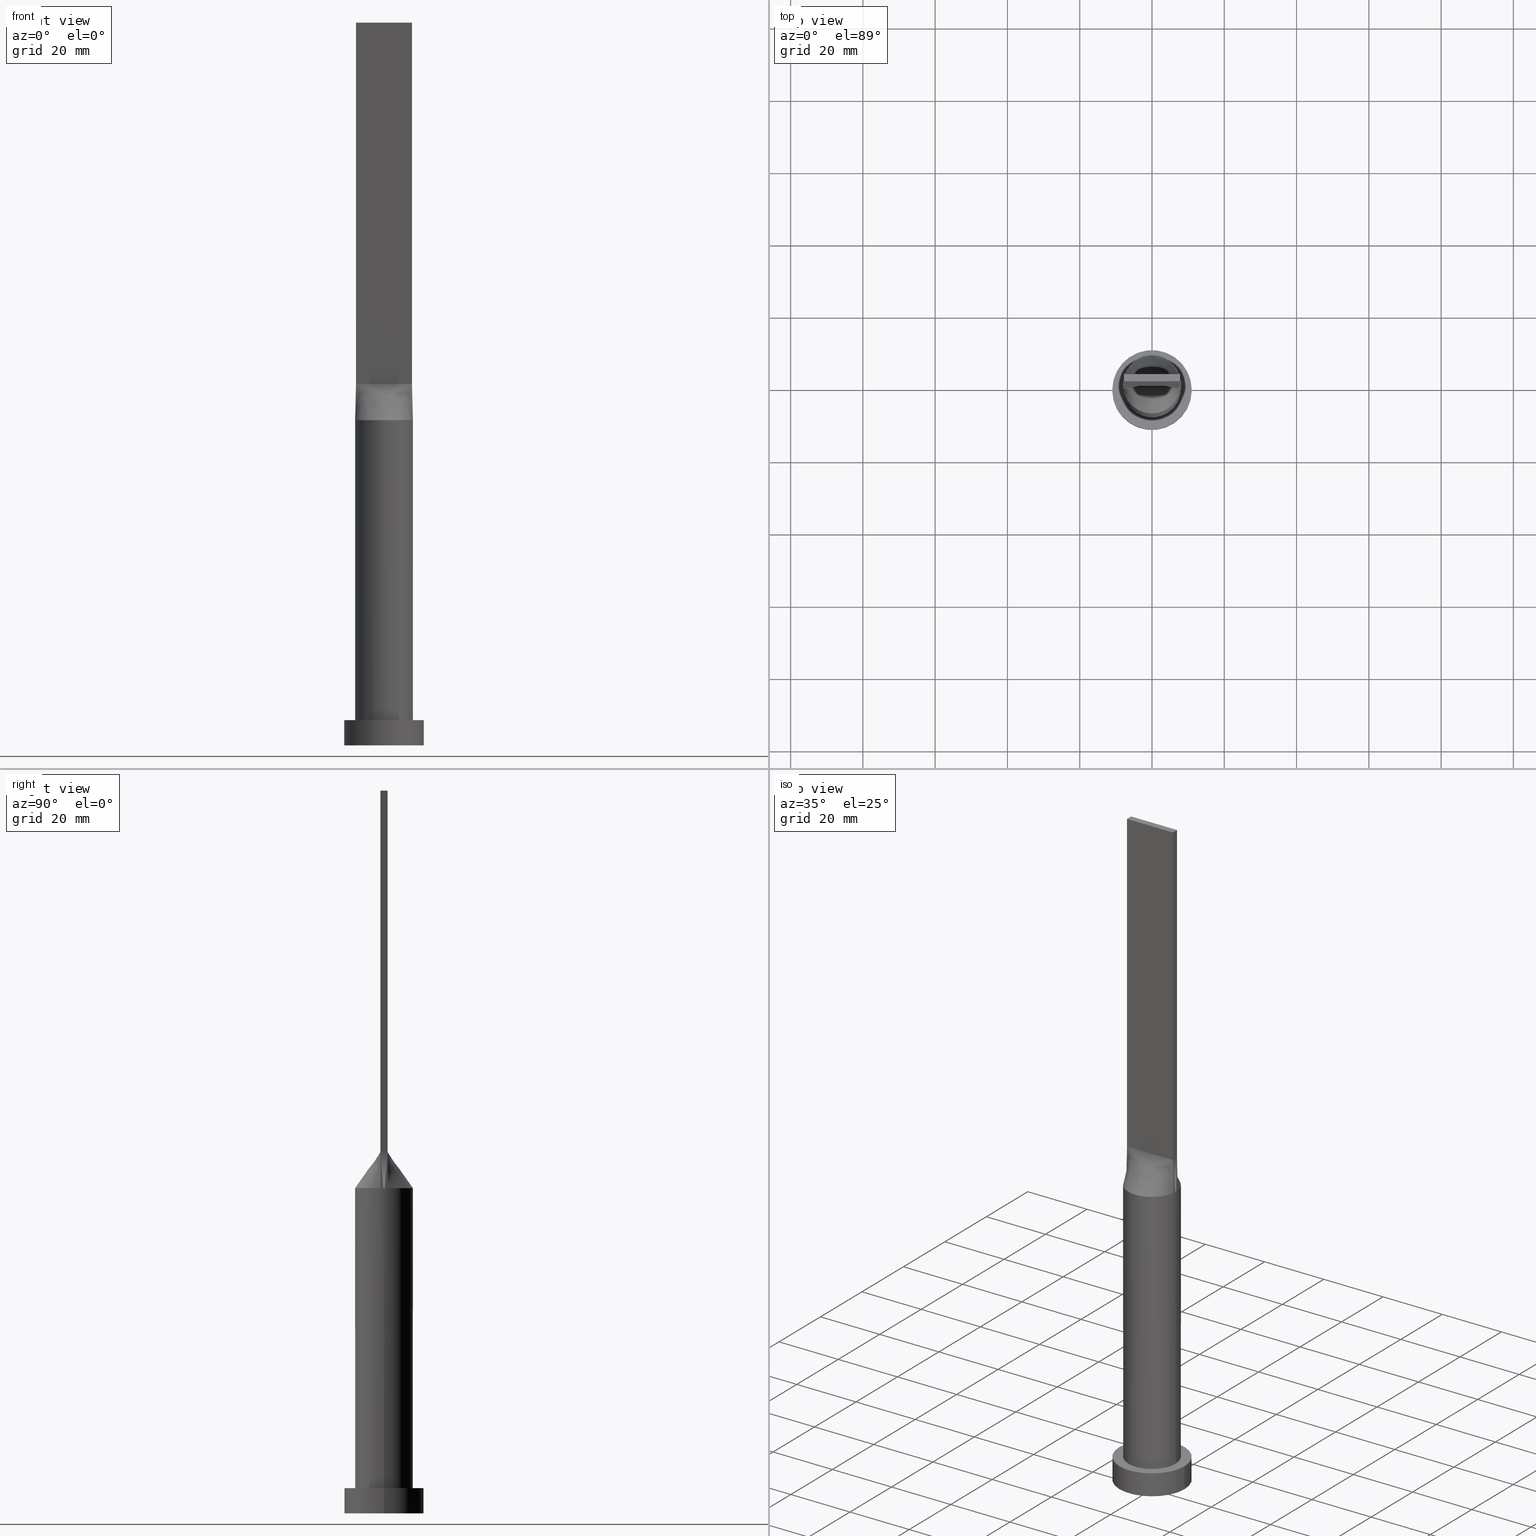
[diagram: canonical four-view strip — front | top / right | iso, engineering-drawing reading convention]
A machine part, canonical four-view strip (front | top / right | iso — engineering-drawing reading convention). The complete STEP part file that produces these views, byte-faithful:
ISO-10303-21;
HEADER;
FILE_DESCRIPTION (( 'STEP AP203' ),
    '1' );
FILE_NAME ('3064.STEP',
    '2023-02-13T08:32:49',
    ( '' ),
    ( '' ),
    'SwSTEP 2.0',
    'SolidWorks 2019',
    '' );
FILE_SCHEMA (( 'CONFIG_CONTROL_DESIGN' ));
ENDSEC;

DATA;
#1 = VERTEX_POINT ( 'NONE', #596 ) ;
#2 = FACE_OUTER_BOUND ( 'NONE', #7, .T. ) ;
#3 = CARTESIAN_POINT ( 'NONE',  ( -11.00000000000000000, 0.000000000000000000, 7.000000000000000000 ) ) ;
#4 = PRODUCT_DEFINITION_SHAPE ( 'NONE', 'NONE',  #186 ) ;
#5 = CYLINDRICAL_SURFACE ( 'NONE', #425, 11.00000000000000000 ) ;
#6 = VECTOR ( 'NONE', #561, 1000.000000000000000 ) ;
#7 = EDGE_LOOP ( 'NONE', ( #163, #318, #201, #116 ) ) ;
#8 = CARTESIAN_POINT ( 'NONE',  ( 7.104166666666666963, 1.000000000000000000, 100.0000000000000000 ) ) ;
#9 = LINE ( 'NONE', #112, #133 ) ;
#10 = ORIENTED_EDGE ( 'NONE', *, *, #243, .T. ) ;
#11 = CARTESIAN_POINT ( 'NONE',  ( -7.999729586091648414, 0.3426598302205489666, 90.00000000000001421 ) ) ;
#12 = LINE ( 'NONE', #212, #327 ) ;
#13 = ORIENTED_EDGE ( 'NONE', *, *, #241, .F. ) ;
#14 = EDGE_LOOP ( 'NONE', ( #505, #175 ) ) ;
#15 = LINE ( 'NONE', #32, #271 ) ;
#16 = EDGE_CURVE ( 'NONE', #24, #1, #154, .T. ) ;
#17 = CARTESIAN_POINT ( 'NONE',  ( -6.226863775955933988, -5.046530946333157353, 90.00000000000001421 ) ) ;
#18 = PERSON_AND_ORGANIZATION ( #294, #67 ) ;
#19 = DIRECTION ( 'NONE',  ( 1.000000000000000000, -6.994852725712931474E-17, 0.000000000000000000 ) ) ;
#20 = DIRECTION ( 'NONE',  ( -0.000000000000000000, -0.000000000000000000, -1.000000000000000000 ) ) ;
#21 = EDGE_CURVE ( 'NONE', #127, #364, #267, .T. ) ;
#22 = FACE_OUTER_BOUND ( 'NONE', #573, .T. ) ;
#23 = CARTESIAN_POINT ( 'NONE',  ( -7.750000000000000000, 1.000000000000000000, 200.0000000000000000 ) ) ;
#24 = VERTEX_POINT ( 'NONE', #23 ) ;
#25 = CARTESIAN_POINT ( 'NONE',  ( -1.291666666666666741, -0.9999999999999991118, 100.0000000000000284 ) ) ;
#26 = ORIENTED_EDGE ( 'NONE', *, *, #107, .T. ) ;
#27 = DIRECTION ( 'NONE',  ( -0.000000000000000000, -0.000000000000000000, -1.000000000000000000 ) ) ;
#28 = EDGE_CURVE ( 'NONE', #583, #354, #617, .T. ) ;
#29 = VECTOR ( 'NONE', #27, 1000.000000000000000 ) ;
#30 = B_SPLINE_CURVE_WITH_KNOTS ( 'NONE', 3,
 ( #274, #121, #570, #558, #236, #229, #616, #111, #173, #608, #334, #280, #619, #428, #322, #382, #168, #371, #244, #287, #345, #586, #142, #180, #79, #579, #347, #85, #296, #623 ),
 .UNSPECIFIED., .F., .F.,
 ( 4, 2, 2, 2, 2, 2, 2, 2, 2, 2, 2, 2, 2, 2, 4 ),
 ( 0.000000000000000000, 0.1250000000000000000, 0.1875000000000000000, 0.2500000000000000000, 0.3125000000000000000, 0.3750000000000000000, 0.4375000000000000000, 0.5000000000000000000, 0.5625000000000000000, 0.6250000000000000000, 0.6875000000000000000, 0.7500000000000000000, 0.8125000000000000000, 0.8750000000000000000, 1.000000000000000000 ),
 .UNSPECIFIED. ) ;
#31 = DIRECTION ( 'NONE',  ( 1.000000000000000000, 0.000000000000000000, 0.000000000000000000 ) ) ;
#32 = CARTESIAN_POINT ( 'NONE',  ( 7.750000000000000000, 1.000000000000000000, 200.0000000000000000 ) ) ;
#33 = CARTESIAN_POINT ( 'NONE',  ( -2.847317194822260422, 7.497028652483947120, 90.00000000000004263 ) ) ;
#34 = LOCAL_TIME ( 9, 32, 49.00000000000000000, #209 ) ;
#35 = CARTESIAN_POINT ( 'NONE',  ( -4.520833333333333925, 1.000000000000000000, 100.0000000000000284 ) ) ;
#36 = EDGE_CURVE ( 'NONE', #248, #546, #170, .T. ) ;
#37 = DIRECTION ( 'NONE',  ( -1.000000000000000000, 0.000000000000000000, 0.000000000000000000 ) ) ;
#38 = CARTESIAN_POINT ( 'NONE',  ( 1.614583333333333481, 1.000000000000000000, 100.0000000000000000 ) ) ;
#39 = AXIS2_PLACEMENT_3D ( 'NONE', #550, #312, #97 ) ;
#40 = APPROVAL ( #522, 'NEUR�EN�' ) ;
#41 = CARTESIAN_POINT ( 'NONE',  ( -4.333237558274722900, 6.745559271922134670, 90.00000000000002842 ) ) ;
#42 = B_SPLINE_SURFACE_WITH_KNOTS ( 'NONE', 3, 1, ( 
 ( #504, #453 ),
 ( #210, #554 ),
 ( #11, #545 ),
 ( #215, #93 ),
 ( #158, #59 ),
 ( #604, #253 ) ),
 .UNSPECIFIED., .F., .F., .F.,
 ( 4, 2, 4 ),
 ( 2, 2 ),
 ( 0.000000000000000000, 0.5000000000000000000, 1.000000000000000000 ),
 ( 0.000000000000000000, 1.000000000000000000 ),
 .UNSPECIFIED. ) ;
#43 = ORIENTED_EDGE ( 'NONE', *, *, #21, .T. ) ;
#44 = DIRECTION ( 'NONE',  ( -1.000000000000000000, -0.000000000000000000, -0.000000000000000000 ) ) ;
#45 = LINE ( 'NONE', #593, #534 ) ;
#46 =( NAMED_UNIT ( * ) SI_UNIT ( $, .STERADIAN. ) SOLID_ANGLE_UNIT ( ) );
#47 = EDGE_LOOP ( 'NONE', ( #494, #594, #206, #43 ) ) ;
#48 = DIRECTION ( 'NONE',  ( 0.000000000000000000, 0.000000000000000000, 1.000000000000000000 ) ) ;
#49 = PLANE ( 'NONE',  #566 ) ;
#50 = CARTESIAN_POINT ( 'NONE',  ( -7.750000000000000000, 1.000000000000000000, 100.0000000000000000 ) ) ;
#51 = CIRCLE ( 'NONE', #340, 8.000000000000000000 ) ;
#52 = EDGE_LOOP ( 'NONE', ( #333, #234, #279, #303 ) ) ;
#53 = LOCAL_TIME ( 9, 32, 49.00000000000000000, #621 ) ;
#54 = CARTESIAN_POINT ( 'NONE',  ( 5.166666666666666963, 1.000000000000000000, 100.0000000000000000 ) ) ;
#55 = CARTESIAN_POINT ( 'NONE',  ( 0.000000000000000000, 0.000000000000000000, 7.000000000000000000 ) ) ;
#56 = PERSON_AND_ORGANIZATION_ROLE ( 'classification_officer' ) ;
#57 = CARTESIAN_POINT ( 'NONE',  ( 7.192469010134844964, -3.526369025759696907, 90.00000000000001421 ) ) ;
#58 = APPLICATION_PROTOCOL_DEFINITION ( 'international standard', 'config_control_design', 1994, #624 ) ;
#59 = CARTESIAN_POINT ( 'NONE',  ( -7.750000000000000000, -0.6666666666666648533, 100.0000000000000000 ) ) ;
#60 = PERSON_AND_ORGANIZATION_ROLE ( 'design_supplier' ) ;
#61 = CARTESIAN_POINT ( 'NONE',  ( 0.000000000000000000, 0.000000000000000000, 90.00000000000001421 ) ) ;
#62 = PERSON_AND_ORGANIZATION ( #294, #67 ) ;
#63 = EDGE_CURVE ( 'NONE', #360, #295, #313, .T. ) ;
#64 = CARTESIAN_POINT ( 'NONE',  ( -7.934264564332944580, 1.023776086464161406, 90.00000000000001421 ) ) ;
#65 = CARTESIAN_POINT ( 'NONE',  ( 1.291666666666665630, -0.9999999999999991118, 100.0000000000000142 ) ) ;
#66 = ORIENTED_EDGE ( 'NONE', *, *, #584, .F. ) ;
#67 = ORGANIZATION ( 'NEUR�EN�', 'NEUR�EN�', '' ) ;
#68 = CC_DESIGN_PERSON_AND_ORGANIZATION_ASSIGNMENT ( #268, #56, ( #74 ) ) ;
#69 = PLANE ( 'NONE',  #199 ) ;
#70 = EDGE_LOOP ( 'NONE', ( #615, #222, #76, #72 ) ) ;
#71 = VERTEX_POINT ( 'NONE', #380 ) ;
#72 = ORIENTED_EDGE ( 'NONE', *, *, #297, .T. ) ;
#73 = VECTOR ( 'NONE', #87, 1000.000000000000114 ) ;
#74 = SECURITY_CLASSIFICATION ( '', '', #172 ) ;
#75 = CARTESIAN_POINT ( 'NONE',  ( 4.333237558274721124, -6.745559271922137334, 90.00000000000004263 ) ) ;
#76 = ORIENTED_EDGE ( 'NONE', *, *, #495, .F. ) ;
#77 = PLANE ( 'NONE',  #553 ) ;
#78 = CARTESIAN_POINT ( 'NONE',  ( 3.552083333333333481, -0.9999999999999993339, 100.0000000000000142 ) ) ;
#79 = CARTESIAN_POINT ( 'NONE',  ( -6.511821874825407974, 4.668925682402791821, 90.00000000000001421 ) ) ;
#80 = ADVANCED_FACE ( 'NONE', ( #119 ), #359, .T. ) ;
#81 = DIRECTION ( 'NONE',  ( 0.000000000000000000, 0.000000000000000000, 1.000000000000000000 ) ) ;
#82 = CIRCLE ( 'NONE', #451, 8.000000000000000000 ) ;
#83 = CARTESIAN_POINT ( 'NONE',  ( 6.511821874825409751, 4.668925682402791821, 90.00000000000001421 ) ) ;
#84 = CARTESIAN_POINT ( 'NONE',  ( -3.862537548001455878, 7.028047916340264045, 90.00000000000004263 ) ) ;
#85 = CARTESIAN_POINT ( 'NONE',  ( -7.675166908885236339, 2.399868494543667907, 90.00000000000002842 ) ) ;
#86 = CARTESIAN_POINT ( 'NONE',  ( -7.750000000000000000, -0.9999999999999986677, 100.0000000000000000 ) ) ;
#87 = DIRECTION ( 'NONE',  ( -0.01841911599500831165, 0.002376660128388246706, 0.9998275289531671772 ) ) ;
#88 = CARTESIAN_POINT ( 'NONE',  ( -5.489583333333335702, 1.000000000000000000, 100.0000000000000284 ) ) ;
#89 = DIRECTION ( 'NONE',  ( 1.000000000000000000, 0.000000000000000000, 0.000000000000000000 ) ) ;
#90 = ORIENTED_EDGE ( 'NONE', *, *, #63, .T. ) ;
#91 = CYLINDRICAL_SURFACE ( 'NONE', #329, 11.00000000000000000 ) ;
#92 = DIRECTION ( 'NONE',  ( 0.000000000000000000, 0.000000000000000000, 1.000000000000000000 ) ) ;
#93 = CARTESIAN_POINT ( 'NONE',  ( -7.750000000000000000, -0.3333333333333312609, 100.0000000000000000 ) ) ;
#94 = ADVANCED_FACE ( 'NONE', ( #375 ), #625, .F. ) ;
#95 = EDGE_LOOP ( 'NONE', ( #228, #443, #379, #151, #475, #90 ) ) ;
#96 = ADVANCED_FACE ( 'NONE', ( #605 ), #270, .F. ) ;
#97 = DIRECTION ( 'NONE',  ( 1.000000000000000000, 0.000000000000000000, 0.000000000000000000 ) ) ;
#98 =( NAMED_UNIT ( * ) PLANE_ANGLE_UNIT ( ) SI_UNIT ( $, .RADIAN. ) );
#99 = EDGE_LOOP ( 'NONE', ( #411, #124, #423, #254 ) ) ;
#100 = DIRECTION ( 'NONE',  ( 1.000000000000000000, 0.000000000000000000, 0.000000000000000000 ) ) ;
#101 = DIRECTION ( 'NONE',  ( 1.000000000000000000, 0.000000000000000000, -0.000000000000000000 ) ) ;
#102 = CIRCLE ( 'NONE', #626, 8.000000000000000000 ) ;
#103 = CARTESIAN_POINT ( 'NONE',  ( 7.750000000000000000, -0.3333333333333324822, 100.0000000000000000 ) ) ;
#104 = CALENDAR_DATE ( 2023, 13, 2 ) ;
#105 = LINE ( 'NONE', #399, #233 ) ;
#106 = CARTESIAN_POINT ( 'NONE',  ( 4.197916666666666963, -0.9999999999999993339, 100.0000000000000142 ) ) ;
#107 = EDGE_CURVE ( 'NONE', #471, #220, #51, .T. ) ;
#108 = LINE ( 'NONE', #284, #525 ) ;
#109 = ORIENTED_EDGE ( 'NONE', *, *, #238, .F. ) ;
#110 = COORDINATED_UNIVERSAL_TIME_OFFSET ( 1, 0, .AHEAD. ) ;
#111 = CARTESIAN_POINT ( 'NONE',  ( 5.562660223239392465, 5.770452176164421410, 90.00000000000001421 ) ) ;
#112 = CARTESIAN_POINT ( 'NONE',  ( 7.750000000000000000, 1.000000000000000000, 200.0000000000000000 ) ) ;
#113 = DATE_TIME_ROLE ( 'creation_date' ) ;
#114 = CARTESIAN_POINT ( 'NONE',  ( 5.166666666666666963, -0.9999999999999995559, 100.0000000000000000 ) ) ;
#115 = CARTESIAN_POINT ( 'NONE',  ( -2.302877821226939403, -7.683241396761614439, 90.00000000000007105 ) ) ;
#116 = ORIENTED_EDGE ( 'NONE', *, *, #36, .F. ) ;
#117 = CARTESIAN_POINT ( 'NONE',  ( 7.750000000000000000, -0.9999999999999997780, 100.0000000000000000 ) ) ;
#118 = DIRECTION ( 'NONE',  ( 0.000000000000000000, 0.000000000000000000, 1.000000000000000000 ) ) ;
#119 = FACE_OUTER_BOUND ( 'NONE', #607, .T. ) ;
#120 = VECTOR ( 'NONE', #176, 1000.000000000000000 ) ;
#121 = CARTESIAN_POINT ( 'NONE',  ( 7.849610172922079521, 1.679519592204998801, 90.00000000000001421 ) ) ;
#122 = CARTESIAN_POINT ( 'NONE',  ( 6.994548530637813677, -3.908833842696238570, 90.00000000000000000 ) ) ;
#123 = EDGE_CURVE ( 'NONE', #314, #295, #363, .T. ) ;
#124 = ORIENTED_EDGE ( 'NONE', *, *, #289, .F. ) ;
#125 = CARTESIAN_POINT ( 'NONE',  ( -5.489583333333332149, -0.9999999999999986677, 100.0000000000000000 ) ) ;
#126 = PERSON_AND_ORGANIZATION ( #294, #67 ) ;
#127 = VERTEX_POINT ( 'NONE', #165 ) ;
#128 = CARTESIAN_POINT ( 'NONE',  ( 1.614583333333331927, -0.9999999999999991118, 100.0000000000000284 ) ) ;
#129 = EDGE_LOOP ( 'NONE', ( #10, #213, #548, #427, #109 ) ) ;
#130 = ADVANCED_FACE ( 'NONE', ( #266 ), #556, .T. ) ;
#131 = VECTOR ( 'NONE', #468, 1000.000000000000000 ) ;
#132 = CARTESIAN_POINT ( 'NONE',  ( 7.750000000000000000, 1.000000000000000000, 200.0000000000000000 ) ) ;
#133 = VECTOR ( 'NONE', #20, 1000.000000000000000 ) ;
#134 = APPROVAL_PERSON_ORGANIZATION ( #330, #441, #230 ) ;
#135 = CARTESIAN_POINT ( 'NONE',  ( -7.934222933072200945, 1.023770701041572195, 90.00000000000001421 ) ) ;
#136 = LINE ( 'NONE', #533, #410 ) ;
#137 = DIRECTION ( 'NONE',  ( -1.000000000000000000, 6.994852725712931474E-17, 0.000000000000000000 ) ) ;
#138 = DIRECTION ( 'NONE',  ( 1.000000000000000000, 9.769962616701377556E-15, 0.000000000000000000 ) ) ;
#139 = CARTESIAN_POINT ( 'NONE',  ( -2.260416666666666519, 1.000000000000000000, 100.0000000000000142 ) ) ;
#140 = ADVANCED_FACE ( 'NONE', ( #22 ), #69, .F. ) ;
#141 = CIRCLE ( 'NONE', #577, 11.00000000000000000 ) ;
#142 = CARTESIAN_POINT ( 'NONE',  ( -5.562660223239390689, 5.770452176164420521, 90.00000000000001421 ) ) ;
#143 = CARTESIAN_POINT ( 'NONE',  ( -5.183259239191613688, 6.116644610143057825, 90.00000000000002842 ) ) ;
#144 = CARTESIAN_POINT ( 'NONE',  ( 0.000000000000000000, 0.000000000000000000, 200.0000000000000000 ) ) ;
#145 = CARTESIAN_POINT ( 'NONE',  ( -1.291666666666666741, 1.000000000000000000, 100.0000000000000000 ) ) ;
#146 = ORIENTED_EDGE ( 'NONE', *, *, #620, .F. ) ;
#147 = CARTESIAN_POINT ( 'NONE',  ( -8.000000000000000000, 0.000000000000000000, 90.00000000000001421 ) ) ;
#148 = FACE_OUTER_BOUND ( 'NONE', #14, .T. ) ;
#149 = FACE_OUTER_BOUND ( 'NONE', #95, .T. ) ;
#150 = VECTOR ( 'NONE', #478, 1000.000000000000114 ) ;
#151 = ORIENTED_EDGE ( 'NONE', *, *, #107, .F. ) ;
#152 = CARTESIAN_POINT ( 'NONE',  ( 7.750000000000000000, 0.3333333333333342030, 100.0000000000000000 ) ) ;
#153 = DIRECTION ( 'NONE',  ( -1.000000000000000000, 0.000000000000000000, 0.000000000000000000 ) ) ;
#154 = LINE ( 'NONE', #517, #398 ) ;
#155 = CARTESIAN_POINT ( 'NONE',  ( 7.849610172922079521, 1.679519592204998801, 90.00000000000001421 ) ) ;
#156 = VERTEX_POINT ( 'NONE', #455 ) ;
#157 = CARTESIAN_POINT ( 'NONE',  ( 7.675166908885234562, 2.399868494543665243, 90.00000000000000000 ) ) ;
#158 = CARTESIAN_POINT ( 'NONE',  ( -7.977894035085166813, -0.6853196604410948245, 90.00000000000001421 ) ) ;
#159 = PERSON_AND_ORGANIZATION ( #294, #67 ) ;
#160 = EDGE_CURVE ( 'NONE', #364, #24, #15, .T. ) ;
#161 = CARTESIAN_POINT ( 'NONE',  ( 7.675166908885234562, -2.399868494543666131, 90.00000000000004263 ) ) ;
#162 = AXIS2_PLACEMENT_3D ( 'NONE', #459, #430, #31 ) ;
#163 = ORIENTED_EDGE ( 'NONE', *, *, #227, .F. ) ;
#164 = AXIS2_PLACEMENT_3D ( 'NONE', #473, #328, #89 ) ;
#165 = CARTESIAN_POINT ( 'NONE',  ( 7.750000000000000000, -0.9999999999999997780, 200.0000000000000000 ) ) ;
#166 = CARTESIAN_POINT ( 'NONE',  ( 1.172177046651855292, -7.934824862069280726, 90.00000000000007105 ) ) ;
#167 = ORIENTED_EDGE ( 'NONE', *, *, #123, .T. ) ;
#168 = CARTESIAN_POINT ( 'NONE',  ( -1.172177046651856402, 7.934824862069282503, 90.00000000000004263 ) ) ;
#169 = CARTESIAN_POINT ( 'NONE',  ( 7.104166666666667851, -0.9999999999999995559, 100.0000000000000000 ) ) ;
#170 = LINE ( 'NONE', #332, #131 ) ;
#171 = DATE_AND_TIME ( #612, #500 ) ;
#172 = SECURITY_CLASSIFICATION_LEVEL ( 'unclassified' ) ;
#173 = CARTESIAN_POINT ( 'NONE',  ( 5.183259239191615464, 6.116644610143058713, 90.00000000000001421 ) ) ;
#174 = DIRECTION ( 'NONE',  ( 0.000000000000000000, 1.000000000000000000, 0.000000000000000000 ) ) ;
#175 = ORIENTED_EDGE ( 'NONE', *, *, #227, .T. ) ;
#176 = DIRECTION ( 'NONE',  ( -0.000000000000000000, -0.000000000000000000, -1.000000000000000000 ) ) ;
#177 = COORDINATED_UNIVERSAL_TIME_OFFSET ( 1, 0, .AHEAD. ) ;
#178 = CARTESIAN_POINT ( 'NONE',  ( -7.104166666666666963, -0.9999999999999986677, 100.0000000000000000 ) ) ;
#179 = EDGE_LOOP ( 'NONE', ( #341, #167, #285, #146, #563, #449 ) ) ;
#180 = CARTESIAN_POINT ( 'NONE',  ( -6.226863775955933100, 5.046530946333157353, 90.00000000000002842 ) ) ;
#181 = DIRECTION ( 'NONE',  ( 0.000000000000000000, 0.000000000000000000, 1.000000000000000000 ) ) ;
#182 = CARTESIAN_POINT ( 'NONE',  ( -7.750000000000000000, -0.9999999999999986677, 200.0000000000000000 ) ) ;
#183 = LINE ( 'NONE', #388, #73 ) ;
#184 = EDGE_CURVE ( 'NONE', #24, #503, #12, .T. ) ;
#185 = CARTESIAN_POINT ( 'NONE',  ( 2.260416666666666519, 1.000000000000000000, 100.0000000000000000 ) ) ;
#186 = PRODUCT_DEFINITION ( 'NEZN�M�', '', #218, #610 ) ;
#187 = VECTOR ( 'NONE', #265, 1000.000000000000114 ) ;
#188 = CARTESIAN_POINT ( 'NONE',  ( 1.291666666666666741, 1.000000000000000000, 100.0000000000000000 ) ) ;
#189 = MECHANICAL_CONTEXT ( 'NONE', #624, 'mechanical' ) ;
#190 = VERTEX_POINT ( 'NONE', #420 ) ;
#191 = CARTESIAN_POINT ( 'NONE',  ( 6.226863775955932212, 5.046530946333158241, 90.00000000000002842 ) ) ;
#192 = ORIENTED_EDGE ( 'NONE', *, *, #299, .F. ) ;
#193 = CARTESIAN_POINT ( 'NONE',  ( -7.750000000000000000, 1.000000000000000000, 100.0000000000000000 ) ) ;
#194 = CARTESIAN_POINT ( 'NONE',  ( -7.842111466536100473, 1.011885350520786098, 95.00000000000000000 ) ) ;
#195 = CARTESIAN_POINT ( 'NONE',  ( -2.583333333333333481, 1.000000000000000000, 100.0000000000000284 ) ) ;
#196 = EDGE_CURVE ( 'NONE', #314, #156, #102, .T. ) ;
#197 = ORIENTED_EDGE ( 'NONE', *, *, #350, .F. ) ;
#198 = DIRECTION ( 'NONE',  ( 1.000000000000000000, 0.000000000000000000, -0.000000000000000000 ) ) ;
#199 = AXIS2_PLACEMENT_3D ( 'NONE', #568, #502, #276 ) ;
#200 = CC_DESIGN_APPROVAL ( #441, ( #186 ) ) ;
#201 = ORIENTED_EDGE ( 'NONE', *, *, #350, .T. ) ;
#202 = CARTESIAN_POINT ( 'NONE',  ( 7.977894035085165036, -0.6853196604410977111, 90.00000000000001421 ) ) ;
#203 = CARTESIAN_POINT ( 'NONE',  ( -7.750000000000000000, -0.9999999999999986677, 100.0000000000000000 ) ) ;
#204 = APPROVAL_DATE_TIME ( #257, #613 ) ;
#205 = DIRECTION ( 'NONE',  ( 1.000000000000000000, 0.000000000000000000, 0.000000000000000000 ) ) ;
#206 = ORIENTED_EDGE ( 'NONE', *, *, #495, .T. ) ;
#207 = CARTESIAN_POINT ( 'NONE',  ( 0.000000000000000000, 0.000000000000000000, 90.00000000000001421 ) ) ;
#208 = CARTESIAN_POINT ( 'NONE',  ( 0.000000000000000000, 0.000000000000000000, 7.000000000000000000 ) ) ;
#209 = COORDINATED_UNIVERSAL_TIME_OFFSET ( 1, 0, .AHEAD. ) ;
#210 = CARTESIAN_POINT ( 'NONE',  ( -7.977894035085165036, 0.6853196604410968229, 90.00000000000001421 ) ) ;
#211 = DATE_TIME_ROLE ( 'classification_date' ) ;
#212 = CARTESIAN_POINT ( 'NONE',  ( -7.750000000000000000, 1.000000000000000000, 200.0000000000000000 ) ) ;
#213 = ORIENTED_EDGE ( 'NONE', *, *, #196, .T. ) ;
#214 = CARTESIAN_POINT ( 'NONE',  ( -7.750000000000000000, 1.000000000000000000, 100.0000000000000000 ) ) ;
#215 = CARTESIAN_POINT ( 'NONE',  ( -7.999729586091648414, -0.3426598302205468571, 90.00000000000001421 ) ) ;
#216 = DIRECTION ( 'NONE',  ( 1.000000000000000000, 0.000000000000000000, 0.000000000000000000 ) ) ;
#217 = CIRCLE ( 'NONE', #433, 11.00000000000000000 ) ;
#218 = PRODUCT_DEFINITION_FORMATION_WITH_SPECIFIED_SOURCE ( 'LIBOVOLN�', '', #489, .NOT_KNOWN. ) ;
#219 = CARTESIAN_POINT ( 'NONE',  ( -0.3229166666666661301, -0.9999999999999991118, 100.0000000000000142 ) ) ;
#220 = VERTEX_POINT ( 'NONE', #412 ) ;
#221 = CARTESIAN_POINT ( 'NONE',  ( 4.520833333333333037, -0.9999999999999995559, 100.0000000000000142 ) ) ;
#222 = ORIENTED_EDGE ( 'NONE', *, *, #515, .F. ) ;
#223 = PERSON_AND_ORGANIZATION ( #294, #67 ) ;
#224 = DIRECTION ( 'NONE',  ( -1.000000000000000000, 0.000000000000000000, 0.000000000000000000 ) ) ;
#225 = ADVANCED_FACE ( 'NONE', ( #348 ), #631, .T. ) ;
#226 = CARTESIAN_POINT ( 'NONE',  ( -1.172177046651859511, -7.934824862069280726, 90.00000000000004263 ) ) ;
#227 = EDGE_CURVE ( 'NONE', #583, #248, #217, .T. ) ;
#228 = ORIENTED_EDGE ( 'NONE', *, *, #123, .F. ) ;
#229 = CARTESIAN_POINT ( 'NONE',  ( 6.511821874825409751, 4.668925682402791821, 90.00000000000001421 ) ) ;
#230 = APPROVAL_ROLE ( '' ) ;
#231 = UNCERTAINTY_MEASURE_WITH_UNIT (LENGTH_MEASURE( 1.000000000000000082E-05 ), #481, 'distance_accuracy_value', 'NONE');
#232 = CARTESIAN_POINT ( 'NONE',  ( -3.552083333333331705, -0.9999999999999986677, 100.0000000000000000 ) ) ;
#233 = VECTOR ( 'NONE', #305, 1000.000000000000114 ) ;
#234 = ORIENTED_EDGE ( 'NONE', *, *, #16, .F. ) ;
#235 = APPROVAL_PERSON_ORGANIZATION ( #126, #40, #365 ) ;
#236 = CARTESIAN_POINT ( 'NONE',  ( 6.994548530637815453, 3.908833842696238570, 90.00000000000001421 ) ) ;
#237 = CARTESIAN_POINT ( 'NONE',  ( -3.229166666666665186, -0.9999999999999986677, 100.0000000000000000 ) ) ;
#238 = EDGE_CURVE ( 'NONE', #190, #497, #183, .T. ) ;
#239 = CARTESIAN_POINT ( 'NONE',  ( 5.489583333333333925, -0.9999999999999995559, 100.0000000000000000 ) ) ;
#240 =( GEOMETRIC_REPRESENTATION_CONTEXT ( 3 ) GLOBAL_UNCERTAINTY_ASSIGNED_CONTEXT ( ( #231 ) ) GLOBAL_UNIT_ASSIGNED_CONTEXT ( ( #481, #98, #46 ) ) REPRESENTATION_CONTEXT ( 'NONE', 'WORKASPACE' ) );
#241 = EDGE_CURVE ( 'NONE', #446, #1, #487, .T. ) ;
#242 = CARTESIAN_POINT ( 'NONE',  ( -4.197916666666667851, 1.000000000000000000, 100.0000000000000284 ) ) ;
#243 = EDGE_CURVE ( 'NONE', #190, #314, #472, .T. ) ;
#244 = CARTESIAN_POINT ( 'NONE',  ( -2.847317194822260422, 7.497028652483947120, 90.00000000000004263 ) ) ;
#245 = CARTESIAN_POINT ( 'NONE',  ( 1.172177046651856624, 7.934824862069278950, 90.00000000000004263 ) ) ;
#246 = VECTOR ( 'NONE', #366, 1000.000000000000000 ) ;
#247 = EDGE_CURVE ( 'NONE', #71, #1, #557, .T. ) ;
#248 = VERTEX_POINT ( 'NONE', #3 ) ;
#249 = CARTESIAN_POINT ( 'NONE',  ( 7.934222933072200945, -1.023770701041574860, 90.00000000000001421 ) ) ;
#250 = CARTESIAN_POINT ( 'NONE',  ( 0.000000000000000000, 0.000000000000000000, 7.000000000000000000 ) ) ;
#251 = EDGE_CURVE ( 'NONE', #156, #71, #591, .T. ) ;
#252 = CARTESIAN_POINT ( 'NONE',  ( 7.999729586091648414, -0.3426598302205492996, 90.00000000000001421 ) ) ;
#253 = CARTESIAN_POINT ( 'NONE',  ( -7.750000000000000000, -0.9999999999999986677, 100.0000000000000000 ) ) ;
#254 = ORIENTED_EDGE ( 'NONE', *, *, #400, .T. ) ;
#255 = DIRECTION ( 'NONE',  ( 1.000000000000000000, 0.000000000000000000, 0.000000000000000000 ) ) ;
#256 = CARTESIAN_POINT ( 'NONE',  ( 7.999864793045824207, 2.000157186781041891E-15, 90.00000000000001421 ) ) ;
#257 = DATE_AND_TIME ( #104, #34 ) ;
#258 = DIRECTION ( 'NONE',  ( -1.000000000000000000, 0.000000000000000000, 0.000000000000000000 ) ) ;
#259 = CIRCLE ( 'NONE', #499, 11.00000000000000000 ) ;
#260 = PERSON_AND_ORGANIZATION_ROLE ( 'creator' ) ;
#261 = FACE_OUTER_BOUND ( 'NONE', #575, .T. ) ;
#262 = CALENDAR_DATE ( 2023, 13, 2 ) ;
#263 = B_SPLINE_SURFACE_WITH_KNOTS ( 'NONE', 3, 1, ( 
 ( #595, #355 ),
 ( #155, #8 ),
 ( #157, #403 ),
 ( #597, #357 ),
 ( #310, #54 ),
 ( #83, #436 ),
 ( #191, #531 ),
 ( #537, #442 ),
 ( #393, #298 ),
 ( #386, #632 ),
 ( #344, #185 ),
 ( #536, #38 ),
 ( #302, #188 ),
 ( #245, #628 ),
 ( #582, #638 ),
 ( #288, #479 ),
 ( #438, #445 ),
 ( #588, #145 ),
 ( #33, #532 ),
 ( #84, #139 ),
 ( #41, #195 ),
 ( #143, #349 ),
 ( #389, #585 ),
 ( #346, #242 ),
 ( #292, #35 ),
 ( #293, #482 ),
 ( #540, #88 ),
 ( #488, #484 ),
 ( #641, #580 ),
 ( #135, #50 ) ),
 .UNSPECIFIED., .F., .F., .F.,
 ( 4, 2, 2, 2, 2, 2, 2, 2, 2, 2, 2, 2, 2, 2, 4 ),
 ( 2, 2 ),
 ( 0.000000000000000000, 0.1250000000000000000, 0.1875000000000000000, 0.2500000000000000000, 0.3125000000000000000, 0.3750000000000000000, 0.4375000000000000000, 0.5000000000000000000, 0.5625000000000000000, 0.6250000000000000000, 0.6875000000000000000, 0.7500000000000000000, 0.8125000000000000000, 0.8750000000000000000, 1.000000000000000000 ),
 ( 0.000000000000000000, 1.000000000000000000 ),
 .UNSPECIFIED. ) ;
#264 = CARTESIAN_POINT ( 'NONE',  ( 0.000000000000000000, 0.000000000000000000, 0.000000000000000000 ) ) ;
#265 = DIRECTION ( 'NONE',  ( -0.01841911599500831165, -0.002376660128388051550, 0.9998275289531671772 ) ) ;
#266 = FACE_OUTER_BOUND ( 'NONE', #179, .T. ) ;
#267 = LINE ( 'NONE', #282, #351 ) ;
#268 = PERSON_AND_ORGANIZATION ( #294, #67 ) ;
#269 = PERSON_AND_ORGANIZATION_ROLE ( 'design_owner' ) ;
#270 = PLANE ( 'NONE',  #391 ) ;
#271 = VECTOR ( 'NONE', #506, 1000.000000000000000 ) ;
#272 = MANIFOLD_SOLID_BREP ( 'P�idat vysunut�m5', #485 ) ;
#273 = CARTESIAN_POINT ( 'NONE',  ( -4.520833333333331261, -0.9999999999999986677, 100.0000000000000000 ) ) ;
#274 = CARTESIAN_POINT ( 'NONE',  ( 7.934252830235720033, 1.023774570959714802, 90.00000000000001421 ) ) ;
#275 = COORDINATED_UNIVERSAL_TIME_OFFSET ( 1, 0, .AHEAD. ) ;
#276 = DIRECTION ( 'NONE',  ( -0.000000000000000000, 0.000000000000000000, -1.000000000000000000 ) ) ;
#277 = CARTESIAN_POINT ( 'NONE',  ( -4.333237558274724677, -6.745559271922134670, 90.00000000000001421 ) ) ;
#278 = CARTESIAN_POINT ( 'NONE',  ( -7.750000000000000000, -0.9999999999999986677, 100.0000000000000000 ) ) ;
#279 = ORIENTED_EDGE ( 'NONE', *, *, #160, .F. ) ;
#280 = CARTESIAN_POINT ( 'NONE',  ( 2.847317194822259534, 7.497028652483948008, 90.00000000000004263 ) ) ;
#281 = PERSON_AND_ORGANIZATION ( #294, #67 ) ;
#282 = CARTESIAN_POINT ( 'NONE',  ( 7.750000000000000000, -0.9999999999999997780, 200.0000000000000000 ) ) ;
#283 = CIRCLE ( 'NONE', #362, 8.000000000000000000 ) ;
#284 = CARTESIAN_POINT ( 'NONE',  ( -7.750000000000000000, -0.9999999999999986677, 200.0000000000000000 ) ) ;
#285 = ORIENTED_EDGE ( 'NONE', *, *, #358, .T. ) ;
#286 = DIRECTION ( 'NONE',  ( -1.000000000000000000, 0.000000000000000000, 0.000000000000000000 ) ) ;
#287 = CARTESIAN_POINT ( 'NONE',  ( -3.862537548001455878, 7.028047916340264045, 90.00000000000004263 ) ) ;
#288 = CARTESIAN_POINT ( 'NONE',  ( -0.5861720261543129640, 7.999999999999998224, 90.00000000000001421 ) ) ;
#289 = EDGE_CURVE ( 'NONE', #248, #583, #141, .T. ) ;
#290 = ORIENTED_EDGE ( 'NONE', *, *, #238, .T. ) ;
#291 = CIRCLE ( 'NONE', #39, 11.00000000000000000 ) ;
#292 = CARTESIAN_POINT ( 'NONE',  ( -6.511821874825407974, 4.668925682402791821, 90.00000000000001421 ) ) ;
#293 = CARTESIAN_POINT ( 'NONE',  ( -6.994548530637814565, 3.908833842696238570, 90.00000000000002842 ) ) ;
#294 = PERSON ( 'NEUR�EN�', 'NEUR�EN�', 'NEUR�EN�', ('NEUR�EN�'), ('NEUR�EN�'), ('NEUR�EN�') ) ;
#295 = VERTEX_POINT ( 'NONE', #321 ) ;
#296 = CARTESIAN_POINT ( 'NONE',  ( -7.849610172922081297, 1.679519592204999023, 90.00000000000000000 ) ) ;
#297 = EDGE_CURVE ( 'NONE', #503, #518, #496, .T. ) ;
#298 = CARTESIAN_POINT ( 'NONE',  ( 3.229166666666666519, 1.000000000000000000, 100.0000000000000000 ) ) ;
#299 = EDGE_CURVE ( 'NONE', #518, #497, #460, .T. ) ;
#300 = FACE_OUTER_BOUND ( 'NONE', #129, .T. ) ;
#301 = DIRECTION ( 'NONE',  ( 0.000000000000000000, 0.000000000000000000, 1.000000000000000000 ) ) ;
#302 = CARTESIAN_POINT ( 'NONE',  ( 2.302877821226935406, 7.683241396761612663, 90.00000000000004263 ) ) ;
#303 = ORIENTED_EDGE ( 'NONE', *, *, #431, .T. ) ;
#304 = CARTESIAN_POINT ( 'NONE',  ( 7.750000000000000000, -0.6666666666666660745, 100.0000000000000000 ) ) ;
#305 = DIRECTION ( 'NONE',  ( -0.01841911599500848859, -0.002376660128388073667, -0.9998275289531671772 ) ) ;
#306 = ORIENTED_EDGE ( 'NONE', *, *, #431, .F. ) ;
#307 = CARTESIAN_POINT ( 'NONE',  ( 7.750000000000000000, 1.000000000000000000, 100.0000000000000000 ) ) ;
#308 = ADVANCED_FACE ( 'NONE', ( #406, #148 ), #49, .T. ) ;
#309 = ORIENTED_EDGE ( 'NONE', *, *, #21, .F. ) ;
#310 = CARTESIAN_POINT ( 'NONE',  ( 6.994548530637815453, 3.908833842696238570, 90.00000000000001421 ) ) ;
#311 = APPROVAL_ROLE ( '' ) ;
#312 = DIRECTION ( 'NONE',  ( 0.000000000000000000, 0.000000000000000000, 1.000000000000000000 ) ) ;
#313 = CIRCLE ( 'NONE', #162, 8.000000000000000000 ) ;
#314 = VERTEX_POINT ( 'NONE', #256 ) ;
#315 = CARTESIAN_POINT ( 'NONE',  ( 0.000000000000000000, 0.000000000000000000, 90.00000000000001421 ) ) ;
#316 = ORIENTED_EDGE ( 'NONE', *, *, #437, .F. ) ;
#317 = CYLINDRICAL_SURFACE ( 'NONE', #635, 8.000000000000000000 ) ;
#318 = ORIENTED_EDGE ( 'NONE', *, *, #28, .T. ) ;
#319 = DIRECTION ( 'NONE',  ( -0.000000000000000000, -0.000000000000000000, -1.000000000000000000 ) ) ;
#320 = CARTESIAN_POINT ( 'NONE',  ( -2.260416666666665630, -0.9999999999999991118, 100.0000000000000142 ) ) ;
#321 = CARTESIAN_POINT ( 'NONE',  ( 8.000000000000000000, 9.797174393178825657E-16, 7.000000000000000000 ) ) ;
#322 = CARTESIAN_POINT ( 'NONE',  ( 0.5861720261543130750, 7.999999999999998224, 89.99999999999998579 ) ) ;
#323 = CARTESIAN_POINT ( 'NONE',  ( 0.5861720261543107435, -8.000000000000001776, 90.00000000000004263 ) ) ;
#324 = ADVANCED_FACE ( 'NONE', ( #397 ), #263, .T. ) ;
#325 = DATE_AND_TIME ( #383, #342 ) ;
#326 = DIRECTION ( 'NONE',  ( 0.000000000000000000, 0.000000000000000000, 1.000000000000000000 ) ) ;
#327 = VECTOR ( 'NONE', #467, 1000.000000000000000 ) ;
#328 = DIRECTION ( 'NONE',  ( 0.000000000000000000, 0.000000000000000000, 1.000000000000000000 ) ) ;
#329 = AXIS2_PLACEMENT_3D ( 'NONE', #452, #498, #37 ) ;
#330 = PERSON_AND_ORGANIZATION ( #294, #67 ) ;
#331 = CARTESIAN_POINT ( 'NONE',  ( 3.229166666666666519, -0.9999999999999993339, 100.0000000000000142 ) ) ;
#332 = CARTESIAN_POINT ( 'NONE',  ( -11.00000000000000000, 0.000000000000000000, 7.000000000000000000 ) ) ;
#333 = ORIENTED_EDGE ( 'NONE', *, *, #247, .T. ) ;
#334 = CARTESIAN_POINT ( 'NONE',  ( 3.862537548001455878, 7.028047916340264933, 90.00000000000002842 ) ) ;
#335 = CALENDAR_DATE ( 2023, 13, 2 ) ;
#336 = ADVANCED_FACE ( 'NONE', ( #461 ), #5, .T. ) ;
#337 = DIRECTION ( 'NONE',  ( -0.000000000000000000, -0.000000000000000000, -1.000000000000000000 ) ) ;
#338 = EDGE_LOOP ( 'NONE', ( #401, #405 ) ) ;
#339 = CARTESIAN_POINT ( 'NONE',  ( 3.862537548001456322, -7.028047916340264045, 90.00000000000007105 ) ) ;
#340 = AXIS2_PLACEMENT_3D ( 'NONE', #315, #509, #463 ) ;
#341 = ORIENTED_EDGE ( 'NONE', *, *, #196, .F. ) ;
#342 = LOCAL_TIME ( 9, 32, 49.00000000000000000, #177 ) ;
#343 = DIRECTION ( 'NONE',  ( 0.000000000000000000, -1.000000000000000000, 0.000000000000000000 ) ) ;
#344 = CARTESIAN_POINT ( 'NONE',  ( 3.862537548001455878, 7.028047916340264933, 90.00000000000002842 ) ) ;
#345 = CARTESIAN_POINT ( 'NONE',  ( -4.333237558274722900, 6.745559271922134670, 90.00000000000002842 ) ) ;
#346 = CARTESIAN_POINT ( 'NONE',  ( -6.226863775955933100, 5.046530946333157353, 90.00000000000002842 ) ) ;
#347 = CARTESIAN_POINT ( 'NONE',  ( -7.192469010134845853, 3.526369025759696019, 90.00000000000002842 ) ) ;
#348 = FACE_OUTER_BOUND ( 'NONE', #47, .T. ) ;
#349 = CARTESIAN_POINT ( 'NONE',  ( -3.229166666666666519, 1.000000000000000000, 100.0000000000000284 ) ) ;
#350 = EDGE_CURVE ( 'NONE', #354, #546, #291, .T. ) ;
#351 = VECTOR ( 'NONE', #174, 1000.000000000000000 ) ;
#352 = AXIS2_PLACEMENT_3D ( 'NONE', #132, #343, #530 ) ;
#353 = DIRECTION ( 'NONE',  ( -0.000000000000000000, -0.000000000000000000, -1.000000000000000000 ) ) ;
#354 = VERTEX_POINT ( 'NONE', #367 ) ;
#355 = CARTESIAN_POINT ( 'NONE',  ( 7.750000000000000000, 1.000000000000000000, 100.0000000000000000 ) ) ;
#356 = CARTESIAN_POINT ( 'NONE',  ( 0.000000000000000000, 0.000000000000000000, 7.000000000000000000 ) ) ;
#357 = CARTESIAN_POINT ( 'NONE',  ( 5.489583333333332149, 1.000000000000000000, 100.0000000000000000 ) ) ;
#358 = EDGE_CURVE ( 'NONE', #295, #360, #82, .T. ) ;
#359 = B_SPLINE_SURFACE_WITH_KNOTS ( 'NONE', 3, 1, ( 
 ( #611, #278 ),
 ( #417, #178 ),
 ( #370, #574 ),
 ( #426, #125 ),
 ( #572, #514 ),
 ( #374, #273 ),
 ( #17, #562 ),
 ( #521, #232 ),
 ( #470, #237 ),
 ( #277, #465 ),
 ( #622, #320 ),
 ( #507, #414 ),
 ( #115, #25 ),
 ( #226, #421 ),
 ( #614, #219 ),
 ( #323, #606 ),
 ( #166, #378 ),
 ( #510, #65 ),
 ( #569, #128 ),
 ( #339, #527 ),
 ( #75, #474 ),
 ( #372, #331 ),
 ( #416, #78 ),
 ( #368, #106 ),
 ( #476, #221 ),
 ( #122, #114 ),
 ( #57, #239 ),
 ( #161, #609 ),
 ( #516, #169 ),
 ( #565, #117 ) ),
 .UNSPECIFIED., .F., .F., .F.,
 ( 4, 2, 2, 2, 2, 2, 2, 2, 2, 2, 2, 2, 2, 2, 4 ),
 ( 2, 2 ),
 ( 0.000000000000000000, 0.1250000000000000555, 0.1875000000000000555, 0.2500000000000000555, 0.3125000000000000000, 0.3750000000000000000, 0.4374999999999999445, 0.4999999999999999445, 0.5624999999999998890, 0.6249999999999998890, 0.6875000000000000000, 0.7500000000000000000, 0.8125000000000000000, 0.8750000000000000000, 1.000000000000000000 ),
 ( 0.000000000000000000, 1.000000000000000000 ),
 .UNSPECIFIED. ) ;
#360 = VERTEX_POINT ( 'NONE', #361 ) ;
#361 = CARTESIAN_POINT ( 'NONE',  ( -8.000000000000000000, 0.000000000000000000, 7.000000000000000000 ) ) ;
#362 = AXIS2_PLACEMENT_3D ( 'NONE', #564, #118, #464 ) ;
#363 = LINE ( 'NONE', #600, #6 ) ;
#364 = VERTEX_POINT ( 'NONE', #395 ) ;
#365 = APPROVAL_ROLE ( '' ) ;
#366 = DIRECTION ( 'NONE',  ( -0.000000000000000000, -0.000000000000000000, -1.000000000000000000 ) ) ;
#367 = CARTESIAN_POINT ( 'NONE',  ( 11.00000000000000000, 1.347111479062088405E-15, 0.000000000000000000 ) ) ;
#368 = CARTESIAN_POINT ( 'NONE',  ( 6.226863775955932212, -5.046530946333159129, 90.00000000000002842 ) ) ;
#369 = EDGE_CURVE ( 'NONE', #497, #71, #45, .T. ) ;
#370 = CARTESIAN_POINT ( 'NONE',  ( -7.675166908885238115, -2.399868494543664799, 90.00000000000001421 ) ) ;
#371 = CARTESIAN_POINT ( 'NONE',  ( -2.302877821226935851, 7.683241396761610886, 90.00000000000004263 ) ) ;
#372 = CARTESIAN_POINT ( 'NONE',  ( 5.183259239191612799, -6.116644610143060490, 90.00000000000002842 ) ) ;
#373 = CC_DESIGN_PERSON_AND_ORGANIZATION_ASSIGNMENT ( #62, #260, ( #218 ) ) ;
#374 = CARTESIAN_POINT ( 'NONE',  ( -6.511821874825411527, -4.668925682402791821, 90.00000000000002842 ) ) ;
#375 = FACE_OUTER_BOUND ( 'NONE', #396, .T. ) ;
#376 = AXIS2_PLACEMENT_3D ( 'NONE', #434, #385, #138 ) ;
#377 = CARTESIAN_POINT ( 'NONE',  ( 7.750000000000000000, -0.9999999999999997780, 100.0000000000000000 ) ) ;
#378 = CARTESIAN_POINT ( 'NONE',  ( 0.6458333333333330373, -0.9999999999999991118, 100.0000000000000142 ) ) ;
#379 = ORIENTED_EDGE ( 'NONE', *, *, #528, .F. ) ;
#380 = CARTESIAN_POINT ( 'NONE',  ( 7.750000000000000000, 1.000000000000000000, 100.0000000000000000 ) ) ;
#381 = ORIENTED_EDGE ( 'NONE', *, *, #584, .T. ) ;
#382 = CARTESIAN_POINT ( 'NONE',  ( -0.5861720261543129640, 7.999999999999998224, 90.00000000000001421 ) ) ;
#383 = CALENDAR_DATE ( 2023, 13, 2 ) ;
#384 = CARTESIAN_POINT ( 'NONE',  ( 11.00000000000000000, 1.347111479062088405E-15, 7.000000000000000000 ) ) ;
#385 = DIRECTION ( 'NONE',  ( 0.000000000000000000, 0.000000000000000000, 1.000000000000000000 ) ) ;
#386 = CARTESIAN_POINT ( 'NONE',  ( 4.333237558274722900, 6.745559271922132893, 89.99999999999998579 ) ) ;
#387 = CC_DESIGN_DATE_AND_TIME_ASSIGNMENT ( #454, #211, ( #74 ) ) ;
#388 = CARTESIAN_POINT ( 'NONE',  ( 7.842111466536100473, -1.011885350520787430, 95.00000000000000000 ) ) ;
#389 = CARTESIAN_POINT ( 'NONE',  ( -5.562660223239390689, 5.770452176164420521, 90.00000000000001421 ) ) ;
#390 = ORIENTED_EDGE ( 'NONE', *, *, #241, .T. ) ;
#391 = AXIS2_PLACEMENT_3D ( 'NONE', #408, #286, #326 ) ;
#392 = CC_DESIGN_DATE_AND_TIME_ASSIGNMENT ( #325, #113, ( #186 ) ) ;
#393 = CARTESIAN_POINT ( 'NONE',  ( 5.183259239191615464, 6.116644610143058713, 90.00000000000001421 ) ) ;
#394 = DIRECTION ( 'NONE',  ( 0.000000000000000000, -1.000000000000000000, 0.000000000000000000 ) ) ;
#395 = CARTESIAN_POINT ( 'NONE',  ( 7.750000000000000000, 1.000000000000000000, 200.0000000000000000 ) ) ;
#396 = EDGE_LOOP ( 'NONE', ( #543, #197 ) ) ;
#397 = FACE_OUTER_BOUND ( 'NONE', #486, .T. ) ;
#398 = VECTOR ( 'NONE', #337, 1000.000000000000000 ) ;
#399 = CARTESIAN_POINT ( 'NONE',  ( -7.842111466536100473, -1.011885350520785209, 95.00000000000000000 ) ) ;
#400 = EDGE_CURVE ( 'NONE', #546, #354, #259, .T. ) ;
#401 = ORIENTED_EDGE ( 'NONE', *, *, #63, .F. ) ;
#402 = LINE ( 'NONE', #193, #603 ) ;
#403 = CARTESIAN_POINT ( 'NONE',  ( 6.458333333333333037, 1.000000000000000000, 100.0000000000000000 ) ) ;
#404 = SHAPE_DEFINITION_REPRESENTATION ( #4, #418 ) ;
#405 = ORIENTED_EDGE ( 'NONE', *, *, #358, .F. ) ;
#406 = FACE_BOUND ( 'NONE', #338, .T. ) ;
#407 = DIRECTION ( 'NONE',  ( -0.000000000000000000, 1.000000000000000000, -0.000000000000000000 ) ) ;
#408 = CARTESIAN_POINT ( 'NONE',  ( 7.750000000000000000, -0.9999999999999997780, 200.0000000000000000 ) ) ;
#409 = CARTESIAN_POINT ( 'NONE',  ( -7.750000000000000000, -0.9999999999999986677, 200.0000000000000000 ) ) ;
#410 = VECTOR ( 'NONE', #538, 1000.000000000000000 ) ;
#411 = ORIENTED_EDGE ( 'NONE', *, *, #28, .F. ) ;
#412 = CARTESIAN_POINT ( 'NONE',  ( -7.934257051336532029, -1.023775119746132001, 90.00000000000001421 ) ) ;
#413 = APPROVAL_PERSON_ORGANIZATION ( #159, #613, #311 ) ;
#414 = CARTESIAN_POINT ( 'NONE',  ( -1.614583333333332815, -0.9999999999999991118, 100.0000000000000284 ) ) ;
#415 = ORIENTED_EDGE ( 'NONE', *, *, #16, .T. ) ;
#416 = CARTESIAN_POINT ( 'NONE',  ( 5.562660223239390689, -5.770452176164421410, 90.00000000000001421 ) ) ;
#417 = CARTESIAN_POINT ( 'NONE',  ( -7.849610172922084850, -1.679519592204998357, 90.00000000000002842 ) ) ;
#418 = ADVANCED_BREP_SHAPE_REPRESENTATION ( '3064', ( #272, #164 ), #240 ) ;
#419 = APPLICATION_PROTOCOL_DEFINITION ( 'international standard', 'config_control_design', 1994, #483 ) ;
#420 = CARTESIAN_POINT ( 'NONE',  ( 7.934268799922667981, -1.023776637617846319, 90.00000000000001421 ) ) ;
#421 = CARTESIAN_POINT ( 'NONE',  ( -0.6458333333333331483, -0.9999999999999991118, 100.0000000000000284 ) ) ;
#422 = APPROVAL_DATE_TIME ( #171, #40 ) ;
#423 = ORIENTED_EDGE ( 'NONE', *, *, #36, .T. ) ;
#424 = ADVANCED_FACE ( 'NONE', ( #261 ), #42, .T. ) ;
#425 = AXIS2_PLACEMENT_3D ( 'NONE', #356, #353, #258 ) ;
#426 = CARTESIAN_POINT ( 'NONE',  ( -7.192469010134850294, -3.526369025759695131, 90.00000000000005684 ) ) ;
#427 = ORIENTED_EDGE ( 'NONE', *, *, #369, .F. ) ;
#428 = CARTESIAN_POINT ( 'NONE',  ( 1.172177046651856624, 7.934824862069278950, 90.00000000000004263 ) ) ;
#429 = PERSON_AND_ORGANIZATION_ROLE ( 'creator' ) ;
#430 = DIRECTION ( 'NONE',  ( 0.000000000000000000, 0.000000000000000000, 1.000000000000000000 ) ) ;
#431 = EDGE_CURVE ( 'NONE', #364, #71, #9, .T. ) ;
#432 = CARTESIAN_POINT ( 'NONE',  ( -7.750000000000000000, -0.9999999999999986677, 200.0000000000000000 ) ) ;
#433 = AXIS2_PLACEMENT_3D ( 'NONE', #250, #301, #627 ) ;
#434 = CARTESIAN_POINT ( 'NONE',  ( 0.000000000000000000, 0.000000000000000000, 90.00000000000001421 ) ) ;
#435 = CC_DESIGN_PERSON_AND_ORGANIZATION_ASSIGNMENT ( #281, #429, ( #186 ) ) ;
#436 = CARTESIAN_POINT ( 'NONE',  ( 4.520833333333333037, 1.000000000000000000, 100.0000000000000000 ) ) ;
#437 = EDGE_CURVE ( 'NONE', #518, #220, #105, .T. ) ;
#438 = CARTESIAN_POINT ( 'NONE',  ( -1.172177046651856402, 7.934824862069282503, 90.00000000000004263 ) ) ;
#439 = ORIENTED_EDGE ( 'NONE', *, *, #369, .T. ) ;
#440 = AXIS2_PLACEMENT_3D ( 'NONE', #144, #81, #539 ) ;
#441 = APPROVAL ( #524, 'NEUR�EN�' ) ;
#442 = CARTESIAN_POINT ( 'NONE',  ( 3.552083333333333481, 1.000000000000000000, 100.0000000000000142 ) ) ;
#443 = ORIENTED_EDGE ( 'NONE', *, *, #243, .F. ) ;
#444 = CARTESIAN_POINT ( 'NONE',  ( 11.00000000000000000, 1.347111479062088405E-15, 7.000000000000000000 ) ) ;
#445 = CARTESIAN_POINT ( 'NONE',  ( -0.6458333333333333703, 1.000000000000000000, 100.0000000000000000 ) ) ;
#446 = VERTEX_POINT ( 'NONE', #64 ) ;
#447 = CARTESIAN_POINT ( 'NONE',  ( 7.999729586091648414, 0.3426598302205475788, 90.00000000000001421 ) ) ;
#448 = DIRECTION ( 'NONE',  ( -0.000000000000000000, -0.000000000000000000, -1.000000000000000000 ) ) ;
#449 = ORIENTED_EDGE ( 'NONE', *, *, #630, .F. ) ;
#450 = CARTESIAN_POINT ( 'NONE',  ( 7.750000000000000000, -1.000000000000000000, 100.0000000000000000 ) ) ;
#451 = AXIS2_PLACEMENT_3D ( 'NONE', #55, #559, #205 ) ;
#452 = CARTESIAN_POINT ( 'NONE',  ( 0.000000000000000000, 0.000000000000000000, 7.000000000000000000 ) ) ;
#453 = CARTESIAN_POINT ( 'NONE',  ( -7.750000000000000000, 1.000000000000000000, 100.0000000000000000 ) ) ;
#454 = DATE_AND_TIME ( #262, #462 ) ;
#455 = CARTESIAN_POINT ( 'NONE',  ( 7.934252830235720033, 1.023774570959714802, 90.00000000000001421 ) ) ;
#456 = ORIENTED_EDGE ( 'NONE', *, *, #184, .F. ) ;
#457 = DIRECTION ( 'NONE',  ( 0.000000000000000000, 0.000000000000000000, 1.000000000000000000 ) ) ;
#458 = DIRECTION ( 'NONE',  ( 0.000000000000000000, 0.000000000000000000, 1.000000000000000000 ) ) ;
#459 = CARTESIAN_POINT ( 'NONE',  ( 0.000000000000000000, 0.000000000000000000, 7.000000000000000000 ) ) ;
#460 = LINE ( 'NONE', #203, #602 ) ;
#461 = FACE_OUTER_BOUND ( 'NONE', #99, .T. ) ;
#462 = LOCAL_TIME ( 9, 32, 49.00000000000000000, #275 ) ;
#463 = DIRECTION ( 'NONE',  ( 1.000000000000000000, 0.000000000000000000, 0.000000000000000000 ) ) ;
#464 = DIRECTION ( 'NONE',  ( 1.000000000000000000, 0.000000000000000000, 0.000000000000000000 ) ) ;
#465 = CARTESIAN_POINT ( 'NONE',  ( -2.583333333333332593, -0.9999999999999988898, 100.0000000000000000 ) ) ;
#466 = ORIENTED_EDGE ( 'NONE', *, *, #492, .T. ) ;
#467 = DIRECTION ( 'NONE',  ( 0.000000000000000000, -1.000000000000000000, 0.000000000000000000 ) ) ;
#468 = DIRECTION ( 'NONE',  ( -0.000000000000000000, -0.000000000000000000, -1.000000000000000000 ) ) ;
#469 = ADVANCED_FACE ( 'NONE', ( #149 ), #317, .T. ) ;
#470 = CARTESIAN_POINT ( 'NONE',  ( -5.183259239191617240, -6.116644610143057825, 90.00000000000002842 ) ) ;
#471 = VERTEX_POINT ( 'NONE', #547 ) ;
#472 = CIRCLE ( 'NONE', #376, 8.000000000000000000 ) ;
#473 = CARTESIAN_POINT ( 'NONE',  ( 0.000000000000000000, 0.000000000000000000, 0.000000000000000000 ) ) ;
#474 = CARTESIAN_POINT ( 'NONE',  ( 2.583333333333333037, -0.9999999999999991118, 100.0000000000000142 ) ) ;
#475 = ORIENTED_EDGE ( 'NONE', *, *, #620, .T. ) ;
#476 = CARTESIAN_POINT ( 'NONE',  ( 6.511821874825406198, -4.668925682402793598, 90.00000000000001421 ) ) ;
#477 = FACE_OUTER_BOUND ( 'NONE', #52, .T. ) ;
#478 = DIRECTION ( 'NONE',  ( 0.01841911599500831165, -0.002376660128387965247, 0.9998275289531671772 ) ) ;
#479 = CARTESIAN_POINT ( 'NONE',  ( -0.3229166666666667407, 1.000000000000000000, 100.0000000000000000 ) ) ;
#480 = AXIS2_PLACEMENT_3D ( 'NONE', #513, #319, #224 ) ;
#481 =( LENGTH_UNIT ( ) NAMED_UNIT ( * ) SI_UNIT ( .MILLI., .METRE. ) );
#482 = CARTESIAN_POINT ( 'NONE',  ( -5.166666666666668739, 1.000000000000000000, 100.0000000000000284 ) ) ;
#483 = APPLICATION_CONTEXT ( 'configuration controlled 3d designs of mechanical parts and assemblies' ) ;
#484 = CARTESIAN_POINT ( 'NONE',  ( -6.458333333333334814, 1.000000000000000000, 100.0000000000000284 ) ) ;
#485 = CLOSED_SHELL ( 'NONE', ( #130, #542, #336, #308, #94, #469, #80, #551, #424, #324, #633, #140, #637, #96, #225 ) ) ;
#486 = EDGE_LOOP ( 'NONE', ( #490, #390, #589, #618 ) ) ;
#487 = LINE ( 'NONE', #194, #150 ) ;
#488 = CARTESIAN_POINT ( 'NONE',  ( -7.675166908885236339, 2.399868494543667907, 90.00000000000002842 ) ) ;
#489 = PRODUCT ( '3064', '3064', '', ( #189 ) ) ;
#490 = ORIENTED_EDGE ( 'NONE', *, *, #630, .T. ) ;
#491 = CARTESIAN_POINT ( 'NONE',  ( 7.750000000000000000, 0.6666666666666671848, 100.0000000000000000 ) ) ;
#492 = EDGE_CURVE ( 'NONE', #446, #471, #283, .T. ) ;
#493 = CARTESIAN_POINT ( 'NONE',  ( 0.000000000000000000, 0.000000000000000000, 90.00000000000001421 ) ) ;
#494 = ORIENTED_EDGE ( 'NONE', *, *, #160, .T. ) ;
#495 = EDGE_CURVE ( 'NONE', #503, #127, #108, .T. ) ;
#496 = LINE ( 'NONE', #409, #246 ) ;
#497 = VERTEX_POINT ( 'NONE', #377 ) ;
#498 = DIRECTION ( 'NONE',  ( -0.000000000000000000, -0.000000000000000000, -1.000000000000000000 ) ) ;
#499 = AXIS2_PLACEMENT_3D ( 'NONE', #501, #508, #599 ) ;
#500 = LOCAL_TIME ( 9, 32, 49.00000000000000000, #110 ) ;
#501 = CARTESIAN_POINT ( 'NONE',  ( 0.000000000000000000, 0.000000000000000000, 0.000000000000000000 ) ) ;
#502 = DIRECTION ( 'NONE',  ( 1.000000000000000000, 0.000000000000000000, -0.000000000000000000 ) ) ;
#503 = VERTEX_POINT ( 'NONE', #432 ) ;
#504 = CARTESIAN_POINT ( 'NONE',  ( -7.934222933072200945, 1.023770701041573972, 90.00000000000001421 ) ) ;
#505 = ORIENTED_EDGE ( 'NONE', *, *, #289, .T. ) ;
#506 = DIRECTION ( 'NONE',  ( -1.000000000000000000, 0.000000000000000000, 0.000000000000000000 ) ) ;
#507 = CARTESIAN_POINT ( 'NONE',  ( -2.847317194822263531, -7.497028652483947120, 90.00000000000002842 ) ) ;
#508 = DIRECTION ( 'NONE',  ( 0.000000000000000000, 0.000000000000000000, 1.000000000000000000 ) ) ;
#509 = DIRECTION ( 'NONE',  ( 0.000000000000000000, 0.000000000000000000, 1.000000000000000000 ) ) ;
#510 = CARTESIAN_POINT ( 'NONE',  ( 2.302877821226934074, -7.683241396761609998, 90.00000000000007105 ) ) ;
#511 = ORIENTED_EDGE ( 'NONE', *, *, #297, .F. ) ;
#512 = VECTOR ( 'NONE', #44, 1000.000000000000000 ) ;
#513 = CARTESIAN_POINT ( 'NONE',  ( 0.000000000000000000, 0.000000000000000000, 90.00000000000001421 ) ) ;
#514 = CARTESIAN_POINT ( 'NONE',  ( -5.166666666666665186, -0.9999999999999986677, 100.0000000000000000 ) ) ;
#515 = EDGE_CURVE ( 'NONE', #127, #497, #136, .T. ) ;
#516 = CARTESIAN_POINT ( 'NONE',  ( 7.849610172922084850, -1.679519592204998357, 89.99999999999998579 ) ) ;
#517 = CARTESIAN_POINT ( 'NONE',  ( -7.750000000000000000, 1.000000000000000000, 200.0000000000000000 ) ) ;
#518 = VERTEX_POINT ( 'NONE', #86 ) ;
#519 = CC_DESIGN_PERSON_AND_ORGANIZATION_ASSIGNMENT ( #223, #269, ( #489 ) ) ;
#520 = DATE_AND_TIME ( #335, #53 ) ;
#521 = CARTESIAN_POINT ( 'NONE',  ( -5.562660223239391577, -5.770452176164420521, 90.00000000000002842 ) ) ;
#522 = APPROVAL_STATUS ( 'not_yet_approved' ) ;
#523 = EDGE_LOOP ( 'NONE', ( #439, #306, #309, #552 ) ) ;
#524 = APPROVAL_STATUS ( 'not_yet_approved' ) ;
#525 = VECTOR ( 'NONE', #571, 1000.000000000000000 ) ;
#526 = CC_DESIGN_APPROVAL ( #613, ( #74 ) ) ;
#527 = CARTESIAN_POINT ( 'NONE',  ( 2.260416666666665630, -0.9999999999999991118, 100.0000000000000284 ) ) ;
#528 = EDGE_CURVE ( 'NONE', #220, #190, #544, .T. ) ;
#529 = FACE_OUTER_BOUND ( 'NONE', #70, .T. ) ;
#530 = DIRECTION ( 'NONE',  ( 0.000000000000000000, -0.000000000000000000, -1.000000000000000000 ) ) ;
#531 = CARTESIAN_POINT ( 'NONE',  ( 4.197916666666666963, 1.000000000000000000, 100.0000000000000142 ) ) ;
#532 = CARTESIAN_POINT ( 'NONE',  ( -1.614583333333333259, 1.000000000000000000, 100.0000000000000142 ) ) ;
#533 = CARTESIAN_POINT ( 'NONE',  ( 7.750000000000000000, -0.9999999999999997780, 200.0000000000000000 ) ) ;
#534 = VECTOR ( 'NONE', #407, 1000.000000000000000 ) ;
#535 = CC_DESIGN_APPROVAL ( #40, ( #218 ) ) ;
#536 = CARTESIAN_POINT ( 'NONE',  ( 2.847317194822259534, 7.497028652483948008, 90.00000000000004263 ) ) ;
#537 = CARTESIAN_POINT ( 'NONE',  ( 5.562660223239392465, 5.770452176164421410, 90.00000000000001421 ) ) ;
#538 = DIRECTION ( 'NONE',  ( -0.000000000000000000, -0.000000000000000000, -1.000000000000000000 ) ) ;
#539 = DIRECTION ( 'NONE',  ( 1.000000000000000000, 0.000000000000000000, -0.000000000000000000 ) ) ;
#540 = CARTESIAN_POINT ( 'NONE',  ( -7.192469010134845853, 3.526369025759696019, 90.00000000000002842 ) ) ;
#541 = AXIS2_PLACEMENT_3D ( 'NONE', #264, #181, #101 ) ;
#542 = ADVANCED_FACE ( 'NONE', ( #2 ), #91, .T. ) ;
#543 = ORIENTED_EDGE ( 'NONE', *, *, #400, .F. ) ;
#544 = CIRCLE ( 'NONE', #578, 8.000000000000000000 ) ;
#545 = CARTESIAN_POINT ( 'NONE',  ( -7.750000000000000000, 0.3333333333333349247, 100.0000000000000000 ) ) ;
#546 = VERTEX_POINT ( 'NONE', #587 ) ;
#547 = CARTESIAN_POINT ( 'NONE',  ( -7.999864793045825984, 2.648518981350782698E-14, 90.00000000000001421 ) ) ;
#548 = ORIENTED_EDGE ( 'NONE', *, *, #251, .T. ) ;
#549 = CARTESIAN_POINT ( 'NONE',  ( 7.842111466536100473, 1.011885350520786542, 95.00000000000000000 ) ) ;
#550 = CARTESIAN_POINT ( 'NONE',  ( 0.000000000000000000, 0.000000000000000000, 0.000000000000000000 ) ) ;
#551 = ADVANCED_FACE ( 'NONE', ( #300 ), #592, .T. ) ;
#552 = ORIENTED_EDGE ( 'NONE', *, *, #515, .T. ) ;
#553 = AXIS2_PLACEMENT_3D ( 'NONE', #182, #581, #137 ) ;
#554 = CARTESIAN_POINT ( 'NONE',  ( -7.750000000000000000, 0.6666666666666676289, 100.0000000000000000 ) ) ;
#555 = APPROVAL_STATUS ( 'not_yet_approved' ) ;
#556 = CYLINDRICAL_SURFACE ( 'NONE', #480, 8.000000000000000000 ) ;
#557 = LINE ( 'NONE', #214, #512 ) ;
#558 = CARTESIAN_POINT ( 'NONE',  ( 7.192469010134847629, 3.526369025759696907, 90.00000000000004263 ) ) ;
#559 = DIRECTION ( 'NONE',  ( 0.000000000000000000, 0.000000000000000000, 1.000000000000000000 ) ) ;
#560 = APPROVAL_DATE_TIME ( #520, #441 ) ;
#561 = DIRECTION ( 'NONE',  ( -0.000000000000000000, -0.000000000000000000, -1.000000000000000000 ) ) ;
#562 = CARTESIAN_POINT ( 'NONE',  ( -4.197916666666665186, -0.9999999999999986677, 100.0000000000000000 ) ) ;
#563 = ORIENTED_EDGE ( 'NONE', *, *, #492, .F. ) ;
#564 = CARTESIAN_POINT ( 'NONE',  ( 0.000000000000000000, 0.000000000000000000, 90.00000000000001421 ) ) ;
#565 = CARTESIAN_POINT ( 'NONE',  ( 7.934222933072200945, -1.023770701041574860, 90.00000000000001421 ) ) ;
#566 = AXIS2_PLACEMENT_3D ( 'NONE', #598, #92, #198 ) ;
#567 = CC_DESIGN_SECURITY_CLASSIFICATION ( #74, ( #218 ) ) ;
#568 = CARTESIAN_POINT ( 'NONE',  ( -7.750000000000000000, 1.000000000000000000, 200.0000000000000000 ) ) ;
#569 = CARTESIAN_POINT ( 'NONE',  ( 2.847317194822259534, -7.497028652483948008, 90.00000000000004263 ) ) ;
#570 = CARTESIAN_POINT ( 'NONE',  ( 7.675166908885234562, 2.399868494543665243, 90.00000000000000000 ) ) ;
#571 = DIRECTION ( 'NONE',  ( 1.000000000000000000, -6.994852725712931474E-17, 0.000000000000000000 ) ) ;
#572 = CARTESIAN_POINT ( 'NONE',  ( -6.994548530637818118, -3.908833842696237681, 90.00000000000001421 ) ) ;
#573 = EDGE_LOOP ( 'NONE', ( #381, #511, #456, #415 ) ) ;
#574 = CARTESIAN_POINT ( 'NONE',  ( -6.458333333333333037, -0.9999999999999986677, 100.0000000000000000 ) ) ;
#575 = EDGE_LOOP ( 'NONE', ( #466, #26, #316, #66, #13 ) ) ;
#576 = PLANE ( 'NONE',  #352 ) ;
#577 = AXIS2_PLACEMENT_3D ( 'NONE', #208, #457, #100 ) ;
#578 = AXIS2_PLACEMENT_3D ( 'NONE', #207, #48, #255 ) ;
#579 = CARTESIAN_POINT ( 'NONE',  ( -6.994548530637814565, 3.908833842696238570, 90.00000000000002842 ) ) ;
#580 = CARTESIAN_POINT ( 'NONE',  ( -7.104166666666667851, 1.000000000000000000, 100.0000000000000000 ) ) ;
#581 = DIRECTION ( 'NONE',  ( 6.994852725712931474E-17, 1.000000000000000000, -0.000000000000000000 ) ) ;
#582 = CARTESIAN_POINT ( 'NONE',  ( 0.5861720261543130750, 7.999999999999998224, 89.99999999999998579 ) ) ;
#583 = VERTEX_POINT ( 'NONE', #444 ) ;
#584 = EDGE_CURVE ( 'NONE', #1, #518, #402, .T. ) ;
#585 = CARTESIAN_POINT ( 'NONE',  ( -3.552083333333333481, 1.000000000000000000, 100.0000000000000284 ) ) ;
#586 = CARTESIAN_POINT ( 'NONE',  ( -5.183259239191613688, 6.116644610143057825, 90.00000000000002842 ) ) ;
#587 = CARTESIAN_POINT ( 'NONE',  ( -11.00000000000000000, 0.000000000000000000, 0.000000000000000000 ) ) ;
#588 = CARTESIAN_POINT ( 'NONE',  ( -2.302877821226935851, 7.683241396761610886, 90.00000000000004263 ) ) ;
#589 = ORIENTED_EDGE ( 'NONE', *, *, #247, .F. ) ;
#590 = LINE ( 'NONE', #147, #120 ) ;
#591 = LINE ( 'NONE', #549, #187 ) ;
#592 = B_SPLINE_SURFACE_WITH_KNOTS ( 'NONE', 3, 1, ( 
 ( #249, #450 ),
 ( #202, #304 ),
 ( #252, #103 ),
 ( #447, #152 ),
 ( #639, #491 ),
 ( #636, #307 ) ),
 .UNSPECIFIED., .F., .F., .F.,
 ( 4, 2, 4 ),
 ( 2, 2 ),
 ( 0.000000000000000000, 0.5000000000000000000, 1.000000000000000000 ),
 ( 0.000000000000000000, 1.000000000000000000 ),
 .UNSPECIFIED. ) ;
#593 = CARTESIAN_POINT ( 'NONE',  ( 7.750000000000000000, 1.000000000000000000, 100.0000000000000000 ) ) ;
#594 = ORIENTED_EDGE ( 'NONE', *, *, #184, .T. ) ;
#595 = CARTESIAN_POINT ( 'NONE',  ( 7.934222933072200945, 1.023770701041573972, 90.00000000000001421 ) ) ;
#596 = CARTESIAN_POINT ( 'NONE',  ( -7.750000000000000000, 1.000000000000000000, 100.0000000000000000 ) ) ;
#597 = CARTESIAN_POINT ( 'NONE',  ( 7.192469010134847629, 3.526369025759696907, 90.00000000000004263 ) ) ;
#598 = CARTESIAN_POINT ( 'NONE',  ( 0.000000000000000000, 0.000000000000000000, 7.000000000000000000 ) ) ;
#599 = DIRECTION ( 'NONE',  ( 1.000000000000000000, 0.000000000000000000, 0.000000000000000000 ) ) ;
#600 = CARTESIAN_POINT ( 'NONE',  ( 8.000000000000000000, 9.797174393178825657E-16, 90.00000000000001421 ) ) ;
#601 = ORIENTED_EDGE ( 'NONE', *, *, #528, .T. ) ;
#602 = VECTOR ( 'NONE', #19, 1000.000000000000000 ) ;
#603 = VECTOR ( 'NONE', #394, 1000.000000000000000 ) ;
#604 = CARTESIAN_POINT ( 'NONE',  ( -7.934222933072202721, -1.023770701041571973, 90.00000000000001421 ) ) ;
#605 = FACE_OUTER_BOUND ( 'NONE', #523, .T. ) ;
#606 = CARTESIAN_POINT ( 'NONE',  ( 0.3229166666666669627, -0.9999999999999991118, 100.0000000000000142 ) ) ;
#607 = EDGE_LOOP ( 'NONE', ( #601, #290, #192, #634 ) ) ;
#608 = CARTESIAN_POINT ( 'NONE',  ( 4.333237558274722900, 6.745559271922132893, 89.99999999999998579 ) ) ;
#609 = CARTESIAN_POINT ( 'NONE',  ( 6.458333333333333925, -0.9999999999999995559, 100.0000000000000000 ) ) ;
#610 = DESIGN_CONTEXT ( 'detailed design', #483, 'design' ) ;
#611 = CARTESIAN_POINT ( 'NONE',  ( -7.934222933072202721, -1.023770701041571973, 90.00000000000001421 ) ) ;
#612 = CALENDAR_DATE ( 2023, 13, 2 ) ;
#613 = APPROVAL ( #555, 'NEUR�EN�' ) ;
#614 = CARTESIAN_POINT ( 'NONE',  ( -0.5861720261543158506, -7.999999999999998224, 90.00000000000001421 ) ) ;
#615 = ORIENTED_EDGE ( 'NONE', *, *, #299, .T. ) ;
#616 = CARTESIAN_POINT ( 'NONE',  ( 6.226863775955932212, 5.046530946333158241, 90.00000000000002842 ) ) ;
#617 = LINE ( 'NONE', #384, #29 ) ;
#618 = ORIENTED_EDGE ( 'NONE', *, *, #251, .F. ) ;
#619 = CARTESIAN_POINT ( 'NONE',  ( 2.302877821226935406, 7.683241396761612663, 90.00000000000004263 ) ) ;
#620 = EDGE_CURVE ( 'NONE', #471, #360, #590, .T. ) ;
#621 = COORDINATED_UNIVERSAL_TIME_OFFSET ( 1, 0, .AHEAD. ) ;
#622 = CARTESIAN_POINT ( 'NONE',  ( -3.862537548001458987, -7.028047916340261381, 90.00000000000002842 ) ) ;
#623 = CARTESIAN_POINT ( 'NONE',  ( -7.934264564332944580, 1.023776086464161406, 90.00000000000001421 ) ) ;
#624 = APPLICATION_CONTEXT ( 'configuration controlled 3d designs of mechanical parts and assemblies' ) ;
#625 = PLANE ( 'NONE',  #541 ) ;
#626 = AXIS2_PLACEMENT_3D ( 'NONE', #61, #458, #216 ) ;
#627 = DIRECTION ( 'NONE',  ( 1.000000000000000000, 0.000000000000000000, 0.000000000000000000 ) ) ;
#628 = CARTESIAN_POINT ( 'NONE',  ( 0.6458333333333333703, 1.000000000000000000, 100.0000000000000000 ) ) ;
#629 = CC_DESIGN_PERSON_AND_ORGANIZATION_ASSIGNMENT ( #18, #60, ( #218 ) ) ;
#630 = EDGE_CURVE ( 'NONE', #156, #446, #30, .T. ) ;
#631 = PLANE ( 'NONE',  #440 ) ;
#632 = CARTESIAN_POINT ( 'NONE',  ( 2.583333333333333481, 1.000000000000000000, 100.0000000000000000 ) ) ;
#633 = ADVANCED_FACE ( 'NONE', ( #477 ), #576, .F. ) ;
#634 = ORIENTED_EDGE ( 'NONE', *, *, #437, .T. ) ;
#635 = AXIS2_PLACEMENT_3D ( 'NONE', #493, #448, #153 ) ;
#636 = CARTESIAN_POINT ( 'NONE',  ( 7.934222933072200945, 1.023770701041573084, 90.00000000000001421 ) ) ;
#637 = ADVANCED_FACE ( 'NONE', ( #529 ), #77, .F. ) ;
#638 = CARTESIAN_POINT ( 'NONE',  ( 0.3229166666666666297, 1.000000000000000000, 100.0000000000000000 ) ) ;
#639 = CARTESIAN_POINT ( 'NONE',  ( 7.977894035085165036, 0.6853196604410960457, 90.00000000000001421 ) ) ;
#640 = PRODUCT_RELATED_PRODUCT_CATEGORY ( 'detail', '', ( #489 ) ) ;
#641 = CARTESIAN_POINT ( 'NONE',  ( -7.849610172922081297, 1.679519592204999023, 90.00000000000000000 ) ) ;
ENDSEC;
END-ISO-10303-21;
